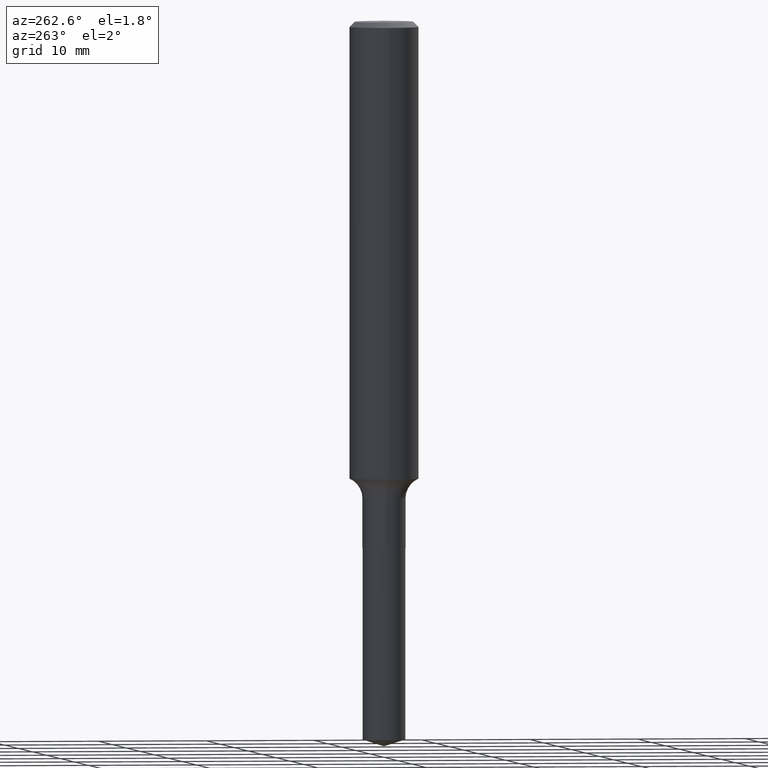
[diagram: clean part render]
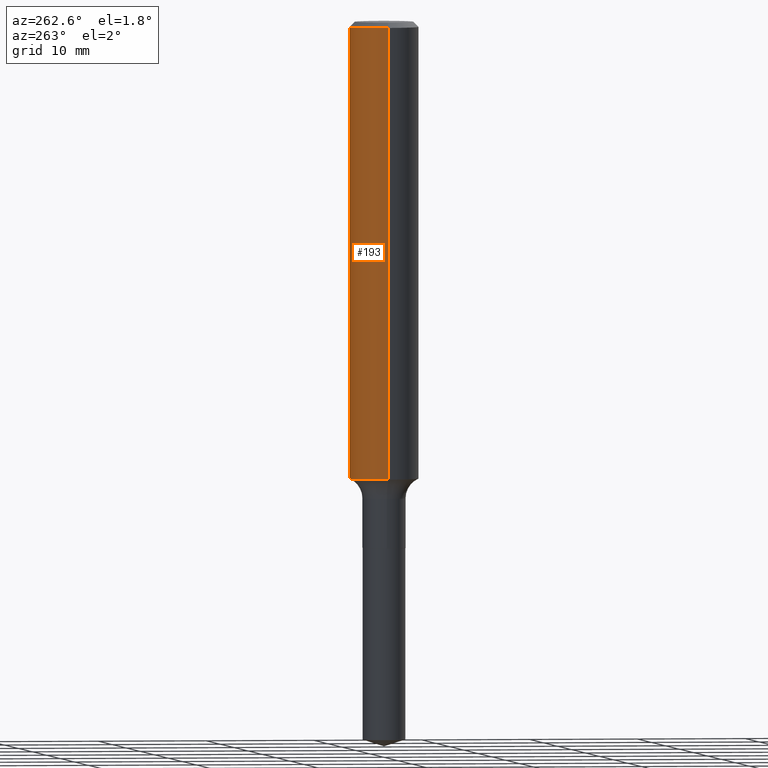
[diagram: same view with one face highlighted and labeled with its STEP entity id]
A machine part, auxiliary view. The second image highlights one B-rep face of the part: STEP entity #193.
In plain terms, the highlighted cylindrical surface (edge-blend (fillet) strip) has radius 3.175 mm, axis along (-0, 0, 1).
Its self-contained STEP definition (entity closure, byte-faithful):
#25 = CIRCLE ( 'NONE', #492, 0.1250000000000001943 ) ;
#33 = LINE ( 'NONE', #313, #341 ) ;
#42 = EDGE_CURVE ( 'NONE', #220, #174, #33, .T. ) ;
#48 = CARTESIAN_POINT ( 'NONE',  ( -0.1250000000000003053, -4.890461520389817899E-15, -1.655068258793735314 ) ) ;
#60 = DIRECTION ( 'NONE',  ( 1.000000000000000000, -6.982962677686266711E-15, 4.876176775795935232E-29 ) ) ;
#64 = CARTESIAN_POINT ( 'NONE',  ( 0.1250000000000001110, -8.728703347107841277E-16, 6.095220969744924646E-30 ) ) ;
#72 = DIRECTION ( 'NONE',  ( 1.000000000000000000, -6.982962677686267499E-15, 0.000000000000000000 ) ) ;
#109 = CIRCLE ( 'NONE', #185, 0.1250000000000000000 ) ;
#132 = ORIENTED_EDGE ( 'NONE', *, *, #200, .F. ) ;
#135 = CARTESIAN_POINT ( 'NONE',  ( -0.1250000000000000000, -2.033874187896500512E-15, -0.01875000000000013461 ) ) ;
#152 = DIRECTION ( 'NONE',  ( -2.445468806185136877E-29, 3.491481338843145188E-15, 1.000000000000000000 ) ) ;
#163 = ORIENTED_EDGE ( 'NONE', *, *, #302, .F. ) ;
#172 = CARTESIAN_POINT ( 'NONE',  ( 0.1250000000000000000, -9.383356098140928781E-16, -0.01875000000000013461 ) ) ;
#174 = VERTEX_POINT ( 'NONE', #135 ) ;
#177 = VERTEX_POINT ( 'NONE', #172 ) ;
#185 = AXIS2_PLACEMENT_3D ( 'NONE', #435, #428, #441 ) ;
#191 = CARTESIAN_POINT ( 'NONE',  ( 4.047417798987228218E-29, -5.778639940089945498E-15, -1.655068258793735314 ) ) ;
#193 = ADVANCED_FACE ( 'NONE', ( #403 ), #393, .T. ) ;
#200 = EDGE_CURVE ( 'NONE', #177, #174, #109, .T. ) ;
#202 = EDGE_LOOP ( 'NONE', ( #215, #388, #132, #163 ) ) ;
#209 = VECTOR ( 'NONE', #478, 39.37007874015748143 ) ;
#215 = ORIENTED_EDGE ( 'NONE', *, *, #425, .T. ) ;
#220 = VERTEX_POINT ( 'NONE', #48 ) ;
#302 = EDGE_CURVE ( 'NONE', #423, #177, #340, .T. ) ;
#313 = CARTESIAN_POINT ( 'NONE',  ( -0.1250000000000001110, 8.881784197001260212E-16, -6.148668862818637832E-30 ) ) ;
#321 = DIRECTION ( 'NONE',  ( -2.445468806185136597E-29, 3.491481338843145583E-15, 1.000000000000000000 ) ) ;
#340 = LINE ( 'NONE', #64, #209 ) ;
#341 = VECTOR ( 'NONE', #152, 39.37007874015748143 ) ;
#366 = CARTESIAN_POINT ( 'NONE',  ( 0.000000000000000000, 0.000000000000000000, 0.000000000000000000 ) ) ;
#374 = CARTESIAN_POINT ( 'NONE',  ( 0.1250000000000003053, -6.651510274800731204E-15, -1.655068258793735314 ) ) ;
#388 = ORIENTED_EDGE ( 'NONE', *, *, #42, .T. ) ;
#393 = CYLINDRICAL_SURFACE ( 'NONE', #447, 0.1250000000000001110 ) ;
#403 = FACE_OUTER_BOUND ( 'NONE', #202, .T. ) ;
#423 = VERTEX_POINT ( 'NONE', #374 ) ;
#425 = EDGE_CURVE ( 'NONE', #423, #220, #25, .T. ) ;
#428 = DIRECTION ( 'NONE',  ( -2.445468806185136597E-29, 3.491481338843145583E-15, 1.000000000000000000 ) ) ;
#435 = CARTESIAN_POINT ( 'NONE',  ( 4.585254011597163874E-31, -6.546527510330944066E-17, -0.01875000000000013461 ) ) ;
#441 = DIRECTION ( 'NONE',  ( 1.000000000000000000, -6.982962677686266711E-15, 0.000000000000000000 ) ) ;
#447 = AXIS2_PLACEMENT_3D ( 'NONE', #366, #321, #60 ) ;
#478 = DIRECTION ( 'NONE',  ( -2.445468806185136877E-29, 3.491481338843145188E-15, 1.000000000000000000 ) ) ;
#487 = DIRECTION ( 'NONE',  ( -2.445468806185136597E-29, 3.491481338843145583E-15, 1.000000000000000000 ) ) ;
#492 = AXIS2_PLACEMENT_3D ( 'NONE', #191, #487, #72 ) ;